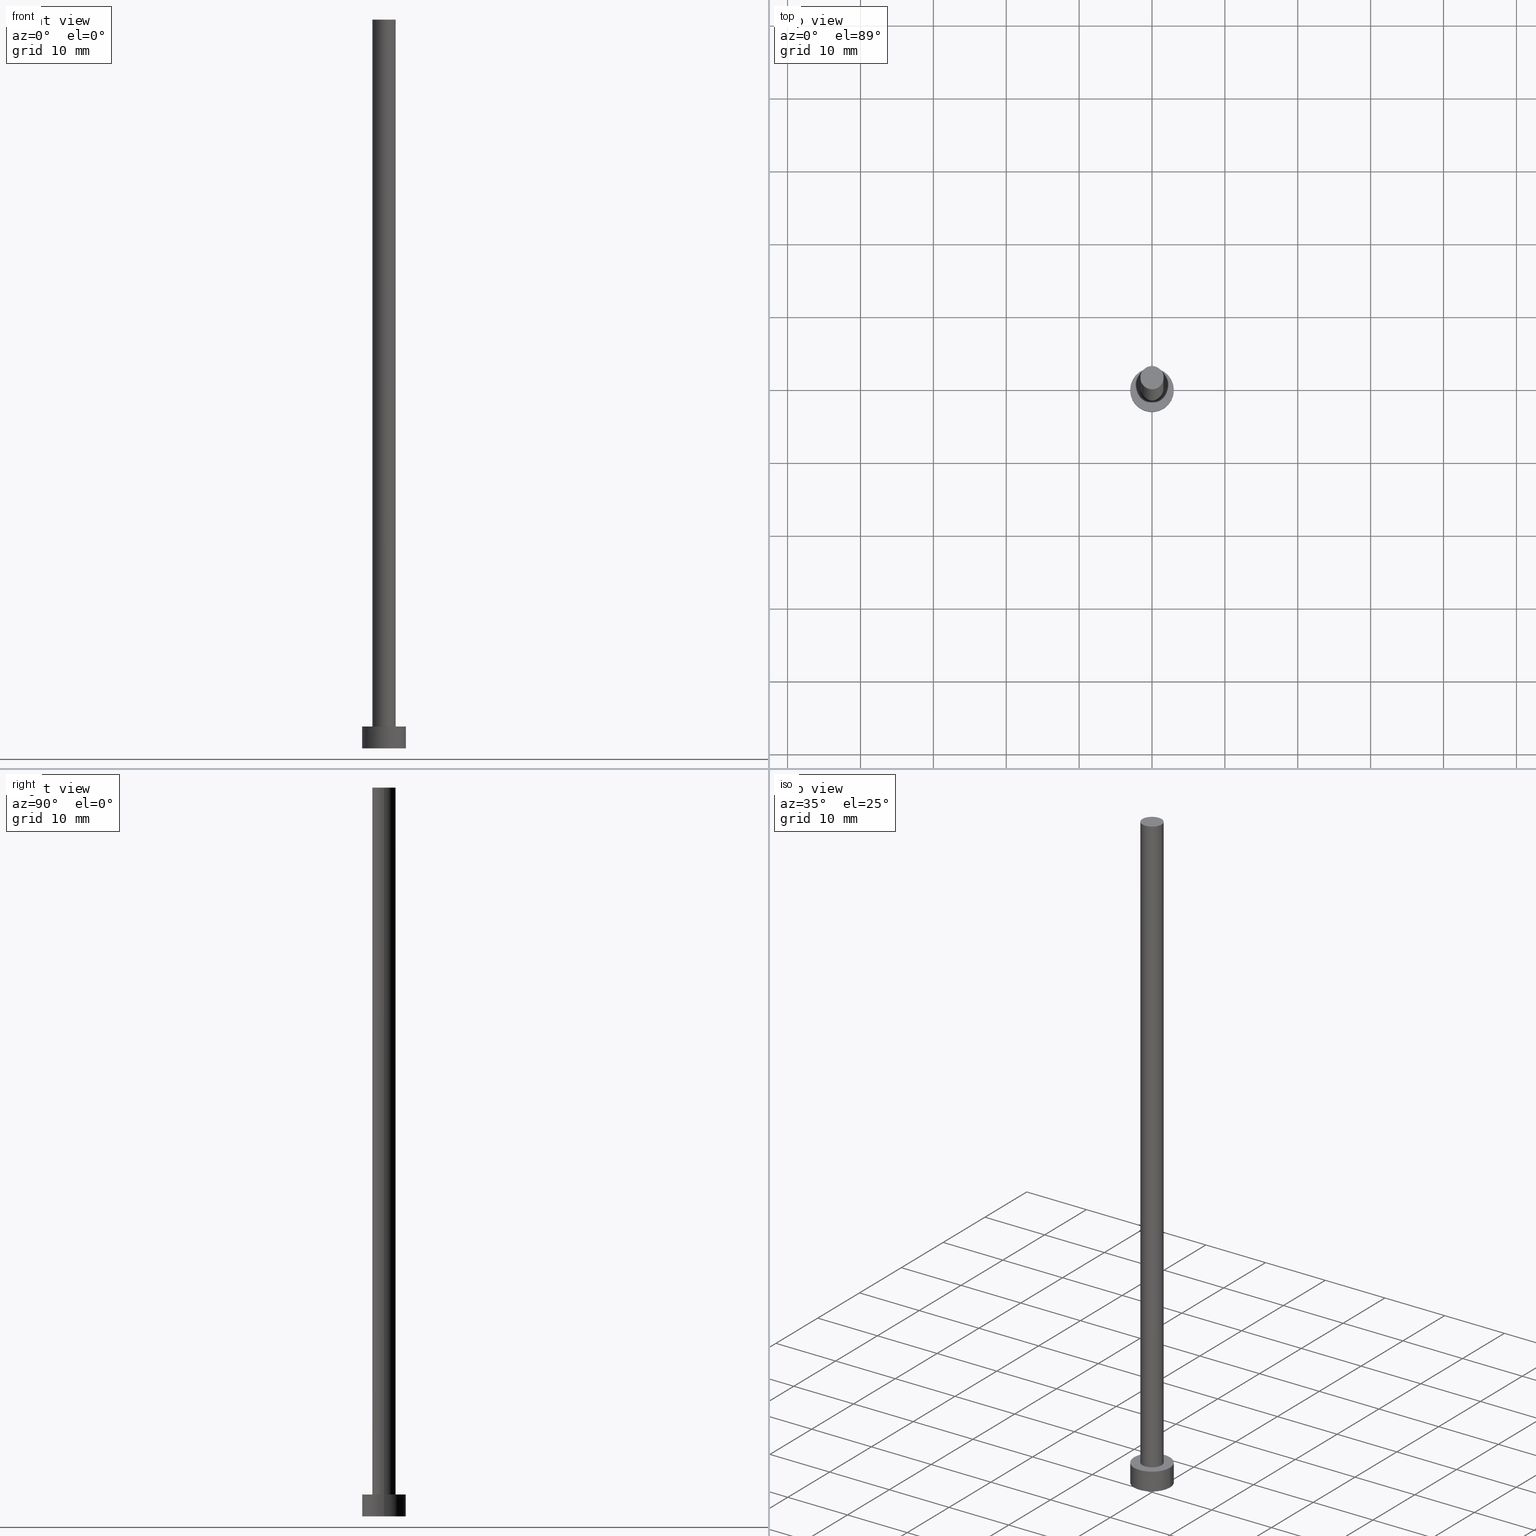
[diagram: canonical four-view strip — front | top / right | iso, engineering-drawing reading convention]
A machine part, canonical four-view strip (front | top / right | iso — engineering-drawing reading convention). The complete STEP part file that produces these views, byte-faithful:
ISO-10303-21;
HEADER;
FILE_DESCRIPTION (( 'STEP AP203' ),
    '1' );
FILE_NAME ('b1f0.STEP',
    '2023-02-13T16:53:41',
    ( '' ),
    ( '' ),
    'SwSTEP 2.0',
    'SolidWorks 2019',
    '' );
FILE_SCHEMA (( 'CONFIG_CONTROL_DESIGN' ));
ENDSEC;

DATA;
#1 = LOCAL_TIME ( 17, 53, 41.00000000000000000, #169 ) ;
#2 = DIRECTION ( 'NONE',  ( -1.000000000000000000, 0.000000000000000000, 0.000000000000000000 ) ) ;
#3 = ORIENTED_EDGE ( 'NONE', *, *, #254, .F. ) ;
#4 = EDGE_CURVE ( 'NONE', #202, #150, #39, .T. ) ;
#5 = CARTESIAN_POINT ( 'NONE',  ( 1.600000000000000089, 1.959434878635764737E-16, 100.0000000000000000 ) ) ;
#6 = EDGE_LOOP ( 'NONE', ( #92, #25, #243, #60 ) ) ;
#7 = APPROVAL_DATE_TIME ( #183, #153 ) ;
#8 = CALENDAR_DATE ( 2023, 13, 2 ) ;
#9 = AXIS2_PLACEMENT_3D ( 'NONE', #34, #141, #138 ) ;
#10 = CIRCLE ( 'NONE', #154, 3.000000000000000444 ) ;
#11 = EDGE_CURVE ( 'NONE', #168, #249, #10, .T. ) ;
#12 = LOCAL_TIME ( 17, 53, 41.00000000000000000, #149 ) ;
#13 = APPLICATION_PROTOCOL_DEFINITION ( 'international standard', 'config_control_design', 1994, #121 ) ;
#14 = LOCAL_TIME ( 17, 53, 41.00000000000000000, #148 ) ;
#15 =( LENGTH_UNIT ( ) NAMED_UNIT ( * ) SI_UNIT ( .MILLI., .METRE. ) );
#16 = FACE_OUTER_BOUND ( 'NONE', #239, .T. ) ;
#17 = CARTESIAN_POINT ( 'NONE',  ( -3.000000000000000444, 0.000000000000000000, 0.000000000000000000 ) ) ;
#18 = CARTESIAN_POINT ( 'NONE',  ( 0.000000000000000000, 0.000000000000000000, 0.000000000000000000 ) ) ;
#19 = ORIENTED_EDGE ( 'NONE', *, *, #91, .T. ) ;
#20 = AXIS2_PLACEMENT_3D ( 'NONE', #166, #76, #38 ) ;
#21 = PERSON_AND_ORGANIZATION_ROLE ( 'classification_officer' ) ;
#22 = FACE_OUTER_BOUND ( 'NONE', #6, .T. ) ;
#23 = VERTEX_POINT ( 'NONE', #17 ) ;
#24 = AXIS2_PLACEMENT_3D ( 'NONE', #79, #115, #233 ) ;
#25 = ORIENTED_EDGE ( 'NONE', *, *, #4, .T. ) ;
#26 = DATE_TIME_ROLE ( 'classification_date' ) ;
#27 = PERSON_AND_ORGANIZATION ( #123, #95 ) ;
#28 = VECTOR ( 'NONE', #81, 1000.000000000000000 ) ;
#29 = CARTESIAN_POINT ( 'NONE',  ( 0.000000000000000000, 0.000000000000000000, 3.000000000000000000 ) ) ;
#30 = UNCERTAINTY_MEASURE_WITH_UNIT (LENGTH_MEASURE( 1.000000000000000082E-05 ), #15, 'distance_accuracy_value', 'NONE');
#31 = DIRECTION ( 'NONE',  ( -0.000000000000000000, -0.000000000000000000, -1.000000000000000000 ) ) ;
#32 = CARTESIAN_POINT ( 'NONE',  ( 0.000000000000000000, 0.000000000000000000, 0.000000000000000000 ) ) ;
#33 = EDGE_CURVE ( 'NONE', #249, #185, #98, .T. ) ;
#34 = CARTESIAN_POINT ( 'NONE',  ( 0.000000000000000000, 0.000000000000000000, 3.000000000000000000 ) ) ;
#35 = DIRECTION ( 'NONE',  ( -0.000000000000000000, -0.000000000000000000, -1.000000000000000000 ) ) ;
#36 = CC_DESIGN_APPROVAL ( #203, ( #134 ) ) ;
#37 = AXIS2_PLACEMENT_3D ( 'NONE', #41, #124, #43 ) ;
#38 = DIRECTION ( 'NONE',  ( 1.000000000000000000, 0.000000000000000000, -0.000000000000000000 ) ) ;
#39 = LINE ( 'NONE', #179, #111 ) ;
#40 = VECTOR ( 'NONE', #116, 1000.000000000000000 ) ;
#41 = CARTESIAN_POINT ( 'NONE',  ( 0.000000000000000000, 0.000000000000000000, 100.0000000000000000 ) ) ;
#42 = PERSON_AND_ORGANIZATION ( #123, #95 ) ;
#43 = DIRECTION ( 'NONE',  ( 1.000000000000000000, 0.000000000000000000, -0.000000000000000000 ) ) ;
#44 = EDGE_LOOP ( 'NONE', ( #200, #19 ) ) ;
#45 = CALENDAR_DATE ( 2023, 13, 2 ) ;
#46 = DIRECTION ( 'NONE',  ( 1.000000000000000000, 0.000000000000000000, 0.000000000000000000 ) ) ;
#47 = EDGE_CURVE ( 'NONE', #150, #94, #191, .T. ) ;
#48 = ORIENTED_EDGE ( 'NONE', *, *, #208, .T. ) ;
#49 = ORIENTED_EDGE ( 'NONE', *, *, #33, .F. ) ;
#50 = CLOSED_SHELL ( 'NONE', ( #170, #96, #186, #251, #223, #87, #192 ) ) ;
#51 = LOCAL_TIME ( 17, 53, 41.00000000000000000, #107 ) ;
#52 = CARTESIAN_POINT ( 'NONE',  ( -3.000000000000000444, 0.000000000000000000, 3.000000000000000000 ) ) ;
#53 = CIRCLE ( 'NONE', #158, 3.000000000000000444 ) ;
#54 = DIRECTION ( 'NONE',  ( 1.000000000000000000, 0.000000000000000000, 0.000000000000000000 ) ) ;
#55 = CARTESIAN_POINT ( 'NONE',  ( 0.000000000000000000, 0.000000000000000000, 3.000000000000000000 ) ) ;
#56 = DIRECTION ( 'NONE',  ( 0.000000000000000000, 0.000000000000000000, 1.000000000000000000 ) ) ;
#57 = AXIS2_PLACEMENT_3D ( 'NONE', #117, #156, #83 ) ;
#58 = EDGE_CURVE ( 'NONE', #202, #219, #252, .T. ) ;
#59 = CARTESIAN_POINT ( 'NONE',  ( 1.600000000000000089, 1.959434878635764737E-16, 3.000000000000000000 ) ) ;
#60 = ORIENTED_EDGE ( 'NONE', *, *, #64, .F. ) ;
#61 = FACE_OUTER_BOUND ( 'NONE', #182, .T. ) ;
#62 =( GEOMETRIC_REPRESENTATION_CONTEXT ( 3 ) GLOBAL_UNCERTAINTY_ASSIGNED_CONTEXT ( ( #30 ) ) GLOBAL_UNIT_ASSIGNED_CONTEXT ( ( #15, #215, #178 ) ) REPRESENTATION_CONTEXT ( 'NONE', 'WORKASPACE' ) );
#63 = PERSON_AND_ORGANIZATION_ROLE ( 'design_owner' ) ;
#64 = EDGE_CURVE ( 'NONE', #219, #94, #230, .T. ) ;
#65 = EDGE_LOOP ( 'NONE', ( #164, #68 ) ) ;
#66 = SECURITY_CLASSIFICATION_LEVEL ( 'unclassified' ) ;
#67 = PRODUCT_RELATED_PRODUCT_CATEGORY ( 'detail', '', ( #228 ) ) ;
#68 = ORIENTED_EDGE ( 'NONE', *, *, #208, .F. ) ;
#69 = PERSON_AND_ORGANIZATION_ROLE ( 'creator' ) ;
#70 = PERSON_AND_ORGANIZATION ( #123, #95 ) ;
#71 = APPLICATION_CONTEXT ( 'configuration controlled 3d designs of mechanical parts and assemblies' ) ;
#72 = CIRCLE ( 'NONE', #57, 1.600000000000000089 ) ;
#73 = AXIS2_PLACEMENT_3D ( 'NONE', #155, #157, #231 ) ;
#74 = DIRECTION ( 'NONE',  ( 0.000000000000000000, 0.000000000000000000, 1.000000000000000000 ) ) ;
#75 = CC_DESIGN_DATE_AND_TIME_ASSIGNMENT ( #86, #26, ( #134 ) ) ;
#76 = DIRECTION ( 'NONE',  ( 0.000000000000000000, 0.000000000000000000, 1.000000000000000000 ) ) ;
#77 = AXIS2_PLACEMENT_3D ( 'NONE', #232, #180, #122 ) ;
#78 = FACE_OUTER_BOUND ( 'NONE', #176, .T. ) ;
#79 = CARTESIAN_POINT ( 'NONE',  ( 0.000000000000000000, 0.000000000000000000, 100.0000000000000000 ) ) ;
#80 = CARTESIAN_POINT ( 'NONE',  ( 3.000000000000000444, 3.673940397442060361E-16, 3.000000000000000000 ) ) ;
#81 = DIRECTION ( 'NONE',  ( -0.000000000000000000, -0.000000000000000000, -1.000000000000000000 ) ) ;
#82 = APPROVAL_PERSON_ORGANIZATION ( #89, #203, #226 ) ;
#83 = DIRECTION ( 'NONE',  ( 1.000000000000000000, 0.000000000000000000, 0.000000000000000000 ) ) ;
#84 = DATE_AND_TIME ( #8, #14 ) ;
#85 = PLANE ( 'NONE',  #20 ) ;
#86 = DATE_AND_TIME ( #206, #12 ) ;
#87 = ADVANCED_FACE ( 'NONE', ( #78 ), #177, .T. ) ;
#88 = CC_DESIGN_APPROVAL ( #100, ( #151 ) ) ;
#89 = PERSON_AND_ORGANIZATION ( #123, #95 ) ;
#90 = PERSON_AND_ORGANIZATION ( #123, #95 ) ;
#91 = EDGE_CURVE ( 'NONE', #249, #168, #211, .T. ) ;
#92 = ORIENTED_EDGE ( 'NONE', *, *, #58, .F. ) ;
#93 = EDGE_CURVE ( 'NONE', #168, #23, #213, .T. ) ;
#94 = VERTEX_POINT ( 'NONE', #210 ) ;
#95 = ORGANIZATION ( 'NEUR�EN�', 'NEUR�EN�', '' ) ;
#96 = ADVANCED_FACE ( 'NONE', ( #16 ), #196, .T. ) ;
#97 = MECHANICAL_CONTEXT ( 'NONE', #121, 'mechanical' ) ;
#98 = LINE ( 'NONE', #195, #40 ) ;
#99 = DIRECTION ( 'NONE',  ( 1.000000000000000000, 0.000000000000000000, 0.000000000000000000 ) ) ;
#100 = APPROVAL ( #240, 'NEUR�EN�' ) ;
#101 = CARTESIAN_POINT ( 'NONE',  ( -1.600000000000000089, 0.000000000000000000, 100.0000000000000000 ) ) ;
#102 = DIRECTION ( 'NONE',  ( 0.000000000000000000, 0.000000000000000000, 1.000000000000000000 ) ) ;
#103 = AXIS2_PLACEMENT_3D ( 'NONE', #163, #31, #255 ) ;
#104 = ORIENTED_EDGE ( 'NONE', *, *, #33, .T. ) ;
#105 = COORDINATED_UNIVERSAL_TIME_OFFSET ( 1, 0, .AHEAD. ) ;
#106 = PRODUCT_DEFINITION_FORMATION_WITH_SPECIFIED_SOURCE ( 'LIBOVOLN�', '', #228, .NOT_KNOWN. ) ;
#107 = COORDINATED_UNIVERSAL_TIME_OFFSET ( 1, 0, .AHEAD. ) ;
#108 = CC_DESIGN_PERSON_AND_ORGANIZATION_ASSIGNMENT ( #42, #242, ( #106 ) ) ;
#109 = AXIS2_PLACEMENT_3D ( 'NONE', #55, #140, #54 ) ;
#110 = ORIENTED_EDGE ( 'NONE', *, *, #145, .T. ) ;
#111 = VECTOR ( 'NONE', #161, 1000.000000000000000 ) ;
#112 = ORIENTED_EDGE ( 'NONE', *, *, #91, .F. ) ;
#113 = DIRECTION ( 'NONE',  ( 0.000000000000000000, 0.000000000000000000, 1.000000000000000000 ) ) ;
#114 = DIRECTION ( 'NONE',  ( 1.000000000000000000, 0.000000000000000000, 0.000000000000000000 ) ) ;
#115 = DIRECTION ( 'NONE',  ( 0.000000000000000000, 0.000000000000000000, 1.000000000000000000 ) ) ;
#116 = DIRECTION ( 'NONE',  ( -0.000000000000000000, -0.000000000000000000, -1.000000000000000000 ) ) ;
#117 = CARTESIAN_POINT ( 'NONE',  ( 0.000000000000000000, 0.000000000000000000, 3.000000000000000000 ) ) ;
#118 = CARTESIAN_POINT ( 'NONE',  ( -1.600000000000000089, 0.000000000000000000, 100.0000000000000000 ) ) ;
#119 = CC_DESIGN_PERSON_AND_ORGANIZATION_ASSIGNMENT ( #253, #63, ( #228 ) ) ;
#120 = FACE_BOUND ( 'NONE', #227, .T. ) ;
#121 = APPLICATION_CONTEXT ( 'configuration controlled 3d designs of mechanical parts and assemblies' ) ;
#122 = DIRECTION ( 'NONE',  ( -1.000000000000000000, 0.000000000000000000, 0.000000000000000000 ) ) ;
#123 = PERSON ( 'NEUR�EN�', 'NEUR�EN�', 'NEUR�EN�', ('NEUR�EN�'), ('NEUR�EN�'), ('NEUR�EN�') ) ;
#124 = DIRECTION ( 'NONE',  ( 0.000000000000000000, 0.000000000000000000, 1.000000000000000000 ) ) ;
#125 = APPROVAL_DATE_TIME ( #84, #100 ) ;
#126 = FACE_OUTER_BOUND ( 'NONE', #65, .T. ) ;
#127 = DATE_AND_TIME ( #45, #51 ) ;
#128 = CARTESIAN_POINT ( 'NONE',  ( 0.000000000000000000, 0.000000000000000000, 3.000000000000000000 ) ) ;
#129 = DATE_TIME_ROLE ( 'creation_date' ) ;
#130 = ORIENTED_EDGE ( 'NONE', *, *, #136, .T. ) ;
#131 = APPROVAL_PERSON_ORGANIZATION ( #70, #153, #204 ) ;
#132 = CIRCLE ( 'NONE', #24, 1.600000000000000089 ) ;
#133 = ADVANCED_BREP_SHAPE_REPRESENTATION ( 'b1f0', ( #241, #193 ), #62 ) ;
#134 = SECURITY_CLASSIFICATION ( '', '', #66 ) ;
#135 = ORIENTED_EDGE ( 'NONE', *, *, #11, .F. ) ;
#136 = EDGE_CURVE ( 'NONE', #219, #202, #132, .T. ) ;
#137 = CARTESIAN_POINT ( 'NONE',  ( 0.000000000000000000, 0.000000000000000000, 100.0000000000000000 ) ) ;
#138 = DIRECTION ( 'NONE',  ( 1.000000000000000000, 0.000000000000000000, -0.000000000000000000 ) ) ;
#139 = DIRECTION ( 'NONE',  ( 1.000000000000000000, 0.000000000000000000, 0.000000000000000000 ) ) ;
#140 = DIRECTION ( 'NONE',  ( 0.000000000000000000, 0.000000000000000000, 1.000000000000000000 ) ) ;
#141 = DIRECTION ( 'NONE',  ( 0.000000000000000000, 0.000000000000000000, 1.000000000000000000 ) ) ;
#142 = DIRECTION ( 'NONE',  ( -0.000000000000000000, -0.000000000000000000, -1.000000000000000000 ) ) ;
#143 = AXIS2_PLACEMENT_3D ( 'NONE', #137, #56, #214 ) ;
#144 = FACE_OUTER_BOUND ( 'NONE', #44, .T. ) ;
#145 = EDGE_CURVE ( 'NONE', #23, #185, #53, .T. ) ;
#146 = APPROVAL_STATUS ( 'not_yet_approved' ) ;
#147 = DIRECTION ( 'NONE',  ( -0.000000000000000000, -0.000000000000000000, -1.000000000000000000 ) ) ;
#148 = COORDINATED_UNIVERSAL_TIME_OFFSET ( 1, 0, .AHEAD. ) ;
#149 = COORDINATED_UNIVERSAL_TIME_OFFSET ( 1, 0, .AHEAD. ) ;
#150 = VERTEX_POINT ( 'NONE', #59 ) ;
#151 = PRODUCT_DEFINITION ( 'NEZN�M�', '', #106, #212 ) ;
#152 = PERSON_AND_ORGANIZATION_ROLE ( 'creator' ) ;
#153 = APPROVAL ( #146, 'NEUR�EN�' ) ;
#154 = AXIS2_PLACEMENT_3D ( 'NONE', #29, #74, #99 ) ;
#155 = CARTESIAN_POINT ( 'NONE',  ( 0.000000000000000000, 0.000000000000000000, 3.000000000000000000 ) ) ;
#156 = DIRECTION ( 'NONE',  ( 0.000000000000000000, 0.000000000000000000, 1.000000000000000000 ) ) ;
#157 = DIRECTION ( 'NONE',  ( 0.000000000000000000, 0.000000000000000000, 1.000000000000000000 ) ) ;
#158 = AXIS2_PLACEMENT_3D ( 'NONE', #209, #113, #139 ) ;
#159 = PLANE ( 'NONE',  #9 ) ;
#160 = DIRECTION ( 'NONE',  ( 0.000000000000000000, 0.000000000000000000, 1.000000000000000000 ) ) ;
#161 = DIRECTION ( 'NONE',  ( -0.000000000000000000, -0.000000000000000000, -1.000000000000000000 ) ) ;
#162 = AXIS2_PLACEMENT_3D ( 'NONE', #198, #147, #2 ) ;
#163 = CARTESIAN_POINT ( 'NONE',  ( 0.000000000000000000, 0.000000000000000000, 3.000000000000000000 ) ) ;
#164 = ORIENTED_EDGE ( 'NONE', *, *, #145, .F. ) ;
#165 = CALENDAR_DATE ( 2023, 13, 2 ) ;
#166 = CARTESIAN_POINT ( 'NONE',  ( 0.000000000000000000, 0.000000000000000000, 0.000000000000000000 ) ) ;
#167 = ORIENTED_EDGE ( 'NONE', *, *, #64, .T. ) ;
#168 = VERTEX_POINT ( 'NONE', #181 ) ;
#169 = COORDINATED_UNIVERSAL_TIME_OFFSET ( 1, 0, .AHEAD. ) ;
#170 = ADVANCED_FACE ( 'NONE', ( #22 ), #218, .T. ) ;
#171 = ORIENTED_EDGE ( 'NONE', *, *, #58, .T. ) ;
#172 = ORIENTED_EDGE ( 'NONE', *, *, #93, .F. ) ;
#173 = APPROVAL_ROLE ( '' ) ;
#174 = LOCAL_TIME ( 17, 53, 41.00000000000000000, #105 ) ;
#175 = CC_DESIGN_PERSON_AND_ORGANIZATION_ASSIGNMENT ( #199, #69, ( #151 ) ) ;
#176 = EDGE_LOOP ( 'NONE', ( #188, #236, #167, #229 ) ) ;
#177 = CYLINDRICAL_SURFACE ( 'NONE', #77, 1.600000000000000089 ) ;
#178 =( NAMED_UNIT ( * ) SI_UNIT ( $, .STERADIAN. ) SOLID_ANGLE_UNIT ( ) );
#179 = CARTESIAN_POINT ( 'NONE',  ( 1.600000000000000089, 1.959434878635764737E-16, 100.0000000000000000 ) ) ;
#180 = DIRECTION ( 'NONE',  ( -0.000000000000000000, -0.000000000000000000, -1.000000000000000000 ) ) ;
#181 = CARTESIAN_POINT ( 'NONE',  ( -3.000000000000000444, 0.000000000000000000, 3.000000000000000000 ) ) ;
#182 = EDGE_LOOP ( 'NONE', ( #49, #135, #190, #110 ) ) ;
#183 = DATE_AND_TIME ( #220, #174 ) ;
#184 = FACE_OUTER_BOUND ( 'NONE', #245, .T. ) ;
#185 = VERTEX_POINT ( 'NONE', #238 ) ;
#186 = ADVANCED_FACE ( 'NONE', ( #61 ), #235, .T. ) ;
#187 = CC_DESIGN_SECURITY_CLASSIFICATION ( #134, ( #106 ) ) ;
#188 = ORIENTED_EDGE ( 'NONE', *, *, #4, .F. ) ;
#189 = APPROVAL_DATE_TIME ( #127, #203 ) ;
#190 = ORIENTED_EDGE ( 'NONE', *, *, #93, .T. ) ;
#191 = CIRCLE ( 'NONE', #73, 1.600000000000000089 ) ;
#192 = ADVANCED_FACE ( 'NONE', ( #184 ), #216, .T. ) ;
#193 = AXIS2_PLACEMENT_3D ( 'NONE', #32, #160, #114 ) ;
#194 = APPROVAL_PERSON_ORGANIZATION ( #90, #100, #173 ) ;
#195 = CARTESIAN_POINT ( 'NONE',  ( 3.000000000000000444, 3.673940397442060361E-16, 3.000000000000000000 ) ) ;
#196 = CYLINDRICAL_SURFACE ( 'NONE', #103, 3.000000000000000444 ) ;
#197 = CC_DESIGN_DATE_AND_TIME_ASSIGNMENT ( #217, #129, ( #151 ) ) ;
#198 = CARTESIAN_POINT ( 'NONE',  ( 0.000000000000000000, 0.000000000000000000, 100.0000000000000000 ) ) ;
#199 = PERSON_AND_ORGANIZATION ( #123, #95 ) ;
#200 = ORIENTED_EDGE ( 'NONE', *, *, #11, .T. ) ;
#201 = SHAPE_DEFINITION_REPRESENTATION ( #248, #133 ) ;
#202 = VERTEX_POINT ( 'NONE', #5 ) ;
#203 = APPROVAL ( #237, 'NEUR�EN�' ) ;
#204 = APPROVAL_ROLE ( '' ) ;
#205 = CIRCLE ( 'NONE', #221, 3.000000000000000444 ) ;
#206 = CALENDAR_DATE ( 2023, 13, 2 ) ;
#207 = CC_DESIGN_PERSON_AND_ORGANIZATION_ASSIGNMENT ( #246, #152, ( #106 ) ) ;
#208 = EDGE_CURVE ( 'NONE', #185, #23, #205, .T. ) ;
#209 = CARTESIAN_POINT ( 'NONE',  ( 0.000000000000000000, 0.000000000000000000, 0.000000000000000000 ) ) ;
#210 = CARTESIAN_POINT ( 'NONE',  ( -1.600000000000000089, 0.000000000000000000, 3.000000000000000000 ) ) ;
#211 = CIRCLE ( 'NONE', #109, 3.000000000000000444 ) ;
#212 = DESIGN_CONTEXT ( 'detailed design', #71, 'design' ) ;
#213 = LINE ( 'NONE', #52, #250 ) ;
#214 = DIRECTION ( 'NONE',  ( 1.000000000000000000, 0.000000000000000000, 0.000000000000000000 ) ) ;
#215 =( NAMED_UNIT ( * ) PLANE_ANGLE_UNIT ( ) SI_UNIT ( $, .RADIAN. ) );
#216 = PLANE ( 'NONE',  #37 ) ;
#217 = DATE_AND_TIME ( #165, #1 ) ;
#218 = CYLINDRICAL_SURFACE ( 'NONE', #162, 1.600000000000000089 ) ;
#219 = VERTEX_POINT ( 'NONE', #101 ) ;
#220 = CALENDAR_DATE ( 2023, 13, 2 ) ;
#221 = AXIS2_PLACEMENT_3D ( 'NONE', #18, #102, #46 ) ;
#222 = DIRECTION ( 'NONE',  ( -1.000000000000000000, 0.000000000000000000, 0.000000000000000000 ) ) ;
#223 = ADVANCED_FACE ( 'NONE', ( #126 ), #85, .F. ) ;
#224 = ORIENTED_EDGE ( 'NONE', *, *, #47, .F. ) ;
#225 = CC_DESIGN_PERSON_AND_ORGANIZATION_ASSIGNMENT ( #27, #21, ( #134 ) ) ;
#226 = APPROVAL_ROLE ( '' ) ;
#227 = EDGE_LOOP ( 'NONE', ( #3, #224 ) ) ;
#228 = PRODUCT ( 'b1f0', 'b1f0', '', ( #97 ) ) ;
#229 = ORIENTED_EDGE ( 'NONE', *, *, #254, .T. ) ;
#230 = LINE ( 'NONE', #118, #28 ) ;
#231 = DIRECTION ( 'NONE',  ( 1.000000000000000000, 0.000000000000000000, 0.000000000000000000 ) ) ;
#232 = CARTESIAN_POINT ( 'NONE',  ( 0.000000000000000000, 0.000000000000000000, 100.0000000000000000 ) ) ;
#233 = DIRECTION ( 'NONE',  ( 1.000000000000000000, 0.000000000000000000, 0.000000000000000000 ) ) ;
#234 = CC_DESIGN_APPROVAL ( #153, ( #106 ) ) ;
#235 = CYLINDRICAL_SURFACE ( 'NONE', #247, 3.000000000000000444 ) ;
#236 = ORIENTED_EDGE ( 'NONE', *, *, #136, .F. ) ;
#237 = APPROVAL_STATUS ( 'not_yet_approved' ) ;
#238 = CARTESIAN_POINT ( 'NONE',  ( 3.000000000000000444, 3.673940397442060361E-16, 0.000000000000000000 ) ) ;
#239 = EDGE_LOOP ( 'NONE', ( #112, #104, #48, #172 ) ) ;
#240 = APPROVAL_STATUS ( 'not_yet_approved' ) ;
#241 = MANIFOLD_SOLID_BREP ( 'P�idat vysunut�m3', #50 ) ;
#242 = PERSON_AND_ORGANIZATION_ROLE ( 'design_supplier' ) ;
#243 = ORIENTED_EDGE ( 'NONE', *, *, #47, .T. ) ;
#244 = APPLICATION_PROTOCOL_DEFINITION ( 'international standard', 'config_control_design', 1994, #71 ) ;
#245 = EDGE_LOOP ( 'NONE', ( #130, #171 ) ) ;
#246 = PERSON_AND_ORGANIZATION ( #123, #95 ) ;
#247 = AXIS2_PLACEMENT_3D ( 'NONE', #128, #142, #222 ) ;
#248 = PRODUCT_DEFINITION_SHAPE ( 'NONE', 'NONE',  #151 ) ;
#249 = VERTEX_POINT ( 'NONE', #80 ) ;
#250 = VECTOR ( 'NONE', #35, 1000.000000000000000 ) ;
#251 = ADVANCED_FACE ( 'NONE', ( #120, #144 ), #159, .T. ) ;
#252 = CIRCLE ( 'NONE', #143, 1.600000000000000089 ) ;
#253 = PERSON_AND_ORGANIZATION ( #123, #95 ) ;
#254 = EDGE_CURVE ( 'NONE', #94, #150, #72, .T. ) ;
#255 = DIRECTION ( 'NONE',  ( -1.000000000000000000, 0.000000000000000000, 0.000000000000000000 ) ) ;
ENDSEC;
END-ISO-10303-21;
